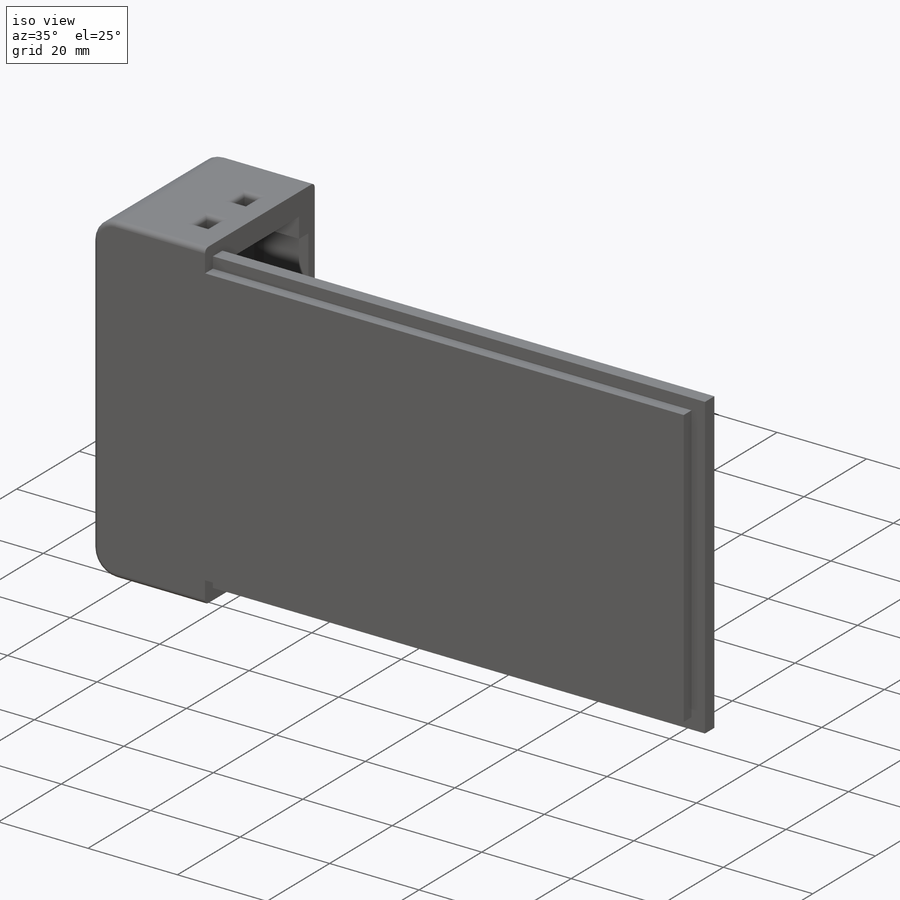
[diagram: iso view]
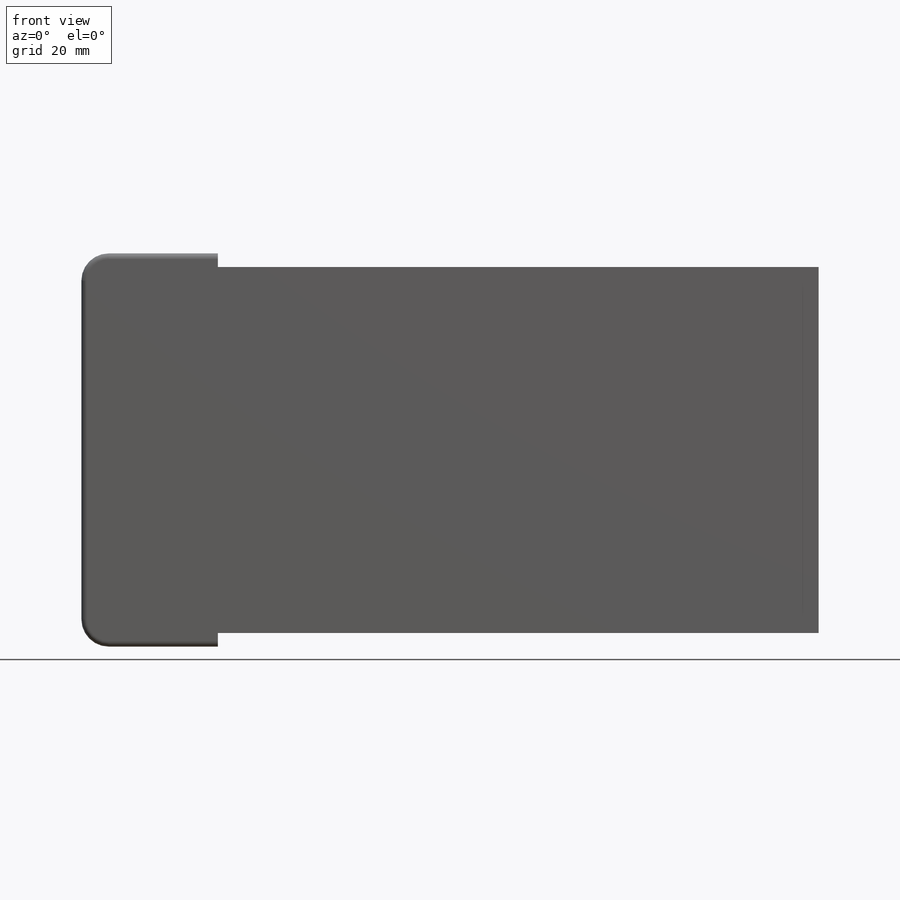
[diagram: front view]
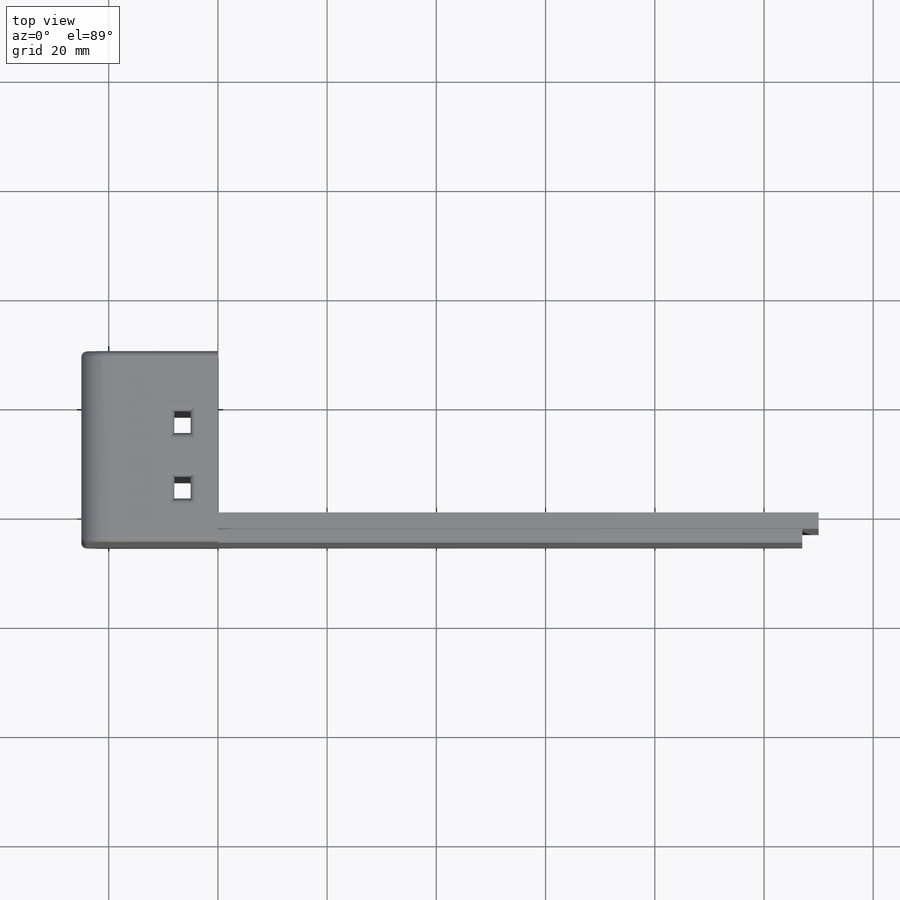
[diagram: top view]
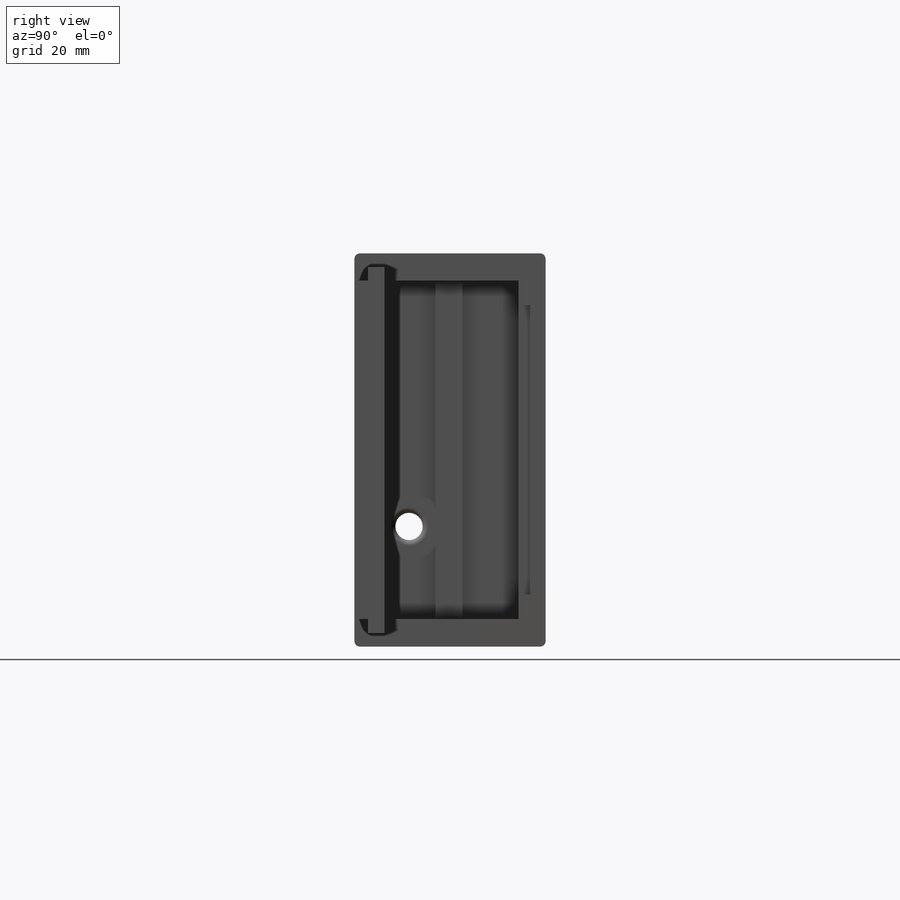
[diagram: right view]
SOLIDWORKS PART (.sldprt)
format: sldprt  version: not decoded by parser v0  size: 509,440 bytes
history: native  units: mm
features: sketch x13, cut_extrude x10, extrude x7, plane x3, fillet x2, material x1, pattern_linear x1 (+9 scaffold rows collapsed)
feature tree (46):
  scaffold x9  (default folders/planes/origin — collapsed)
  material  "Matériau <non spécifié>"
  plane  "Plan de face"
  plane  "Plan de dessus"
  plane  "Plan de droite"
  sketch  "Esquisse1"  dims[D1=0.0mm D2=0.0mm D3=135.0mm]
  extrude  "Boss.-Extru.1"  [1 undecoded]
  sketch  "Esquisse3"  dims[D1=0.0mm]
  extrude  "Boss.-Extru.2"  [1 undecoded]
  sketch  "Esquisse4"
  extrude  "Boss.-Extru.3"  [1 undecoded]
  sketch  "Esquisse5"
  extrude  "Boss.-Extru.4"  [1 undecoded]
  sketch  "Esquisse10"  dims[D1=5.0mm]
  cut_extrude  "Enlèv. mat.-Extru.2"  [1 undecoded]
  sketch  "Esquisse11"  dims[c1.D1=10.0mm c1.D2=60.0mm c1.D3=9.5mm c2.D2=9.5mm]
  cut_extrude  "Enlèv. mat.-Extru.3"  [1 undecoded]
  sketch  "Esquisse13"
  extrude  "Boss.-Extru.5"  Depth=1mm
  sketch  "Esquisse14"  dims[D1=5.0mm]
  extrude  "Boss.-Extru.6"  [1 undecoded]
  sketch  "Esquisse15"
  cut_extrude  "Enlèv. mat.-Extru.5"  Depth=0.5mm
  fillet  "Congé1"  Radius=0.25mm
  sketch  "Esquisse21"  dims[D1=5.0mm D2=3.0mm]
  extrude  "Boss.-Extru.8"  [1 undecoded]
  cut_extrude  "Congé2"  Depth=5mm
  cut_extrude  "Congé3"  Depth=1mm
  sketch  "Esquisse24"  dims[D3=13.0mm D4=17.0mm D1=12.5mm D2=22.5mm]
  cut_extrude  "Enlèv. mat.-Extru.8"  Depth=0.2mm
  sketch  "Esquisse25"  dims[c1.D1=13.0mm c1.D2=17.0mm c2.D1=~11.307462mm]
  cut_extrude  "Enlèv. mat.-Extru.9"  Depth=0.2mm
  sketch  "Esquisse26"  dims[c1.D3=5.0mm c1.D4=5.0mm c1.D1=22.0mm c1.D2=~33.692538mm c2.D4=25.0mm]
  cut_extrude  "Enlèv. mat.-Extru.10"  [1 undecoded]
  cut_extrude  "Congé4"  Depth=1mm HeightOffset=1mm WidthOffset=1mm Clearance=4mm Gap=0mm GapHeight=2mm
  fillet  "Logement d'ergot2"  Radius=1mm HeightOffset=1mm WidthOffset=1mm Clearance=4mm Gap=0mm GapHeight=2mm
  pattern_linear  "Répétition linéaire1"  Count1=2 Count2=1 Spacing1=12mm Spacing2=62mm
  cut_extrude  "Congé6"  Depth=1mm
decode coverage: 20 of 33 modeling features carry decoded parameters
note: ~ marks probable driven/reference dimensions
note: 9 parameter values undecoded
summary: no parameter record found for 9 features
note: suppression state not decoded; provenance and decode notes live in map.json
